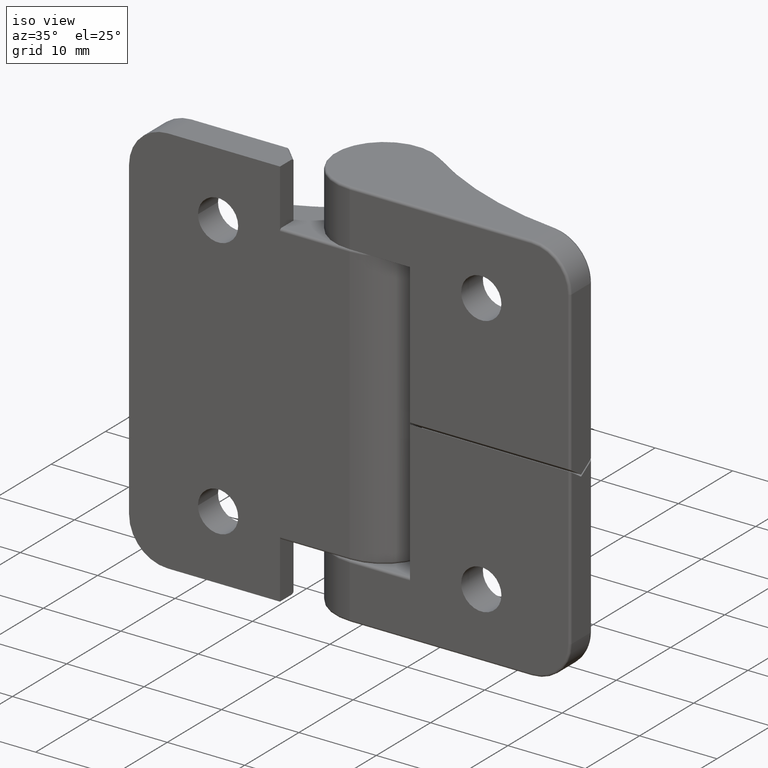
[diagram: clean part render]
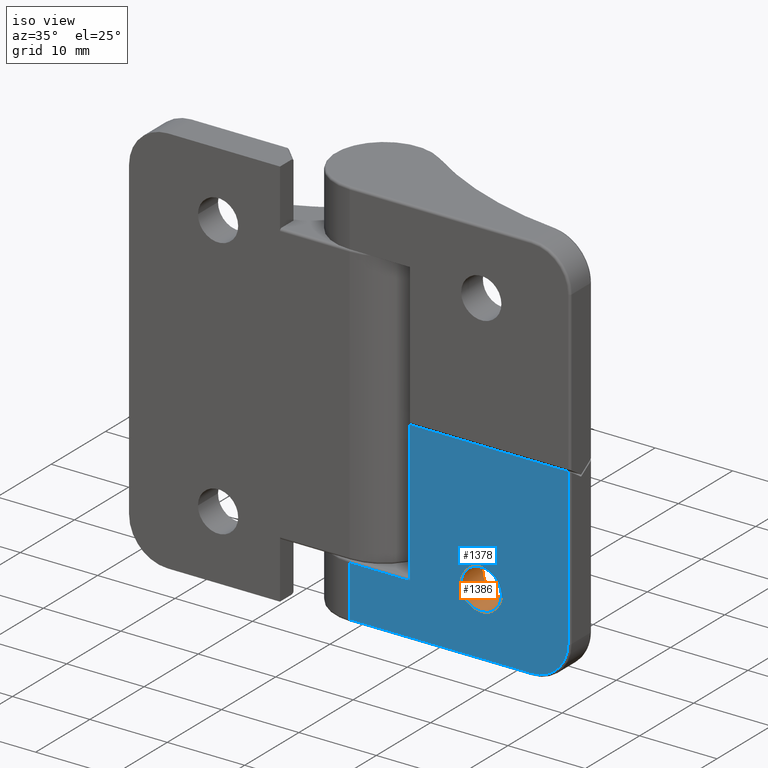
[diagram: same view with the hole feature highlighted: cylindrical wall and planar end face, labeled with their STEP entity ids]
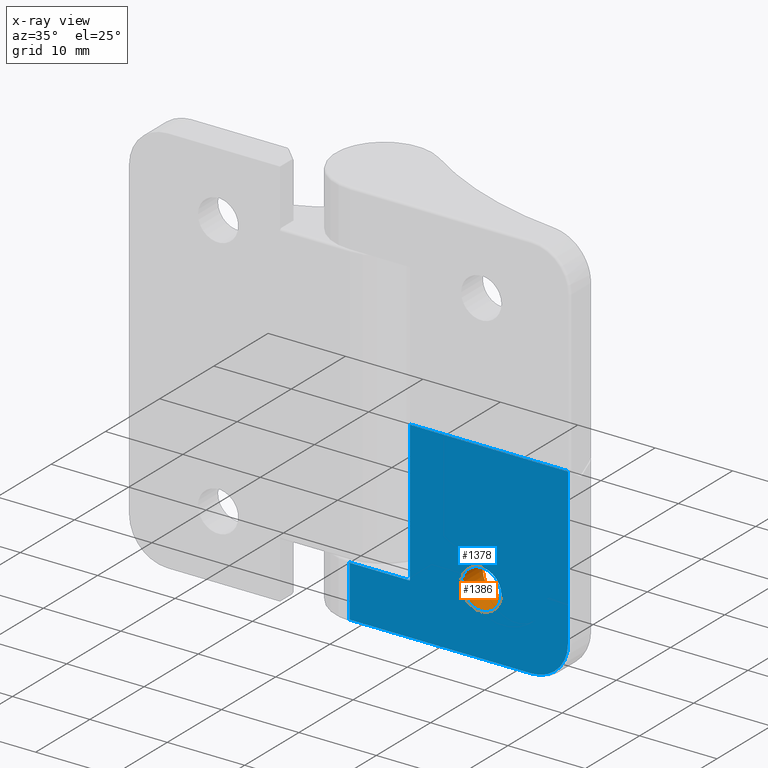
[diagram: x-ray of the same camera — body ghosted, the hole faces saturated]
A machine part, iso view. The highlighted faces form one hole feature of diameter 5.2 mm: the cylindrical wall (entity #1386, orange) and its adjacent planar end face (entity #1378, blue) — they share a circular edge in the B-rep.
The next image is the same camera in x-ray (body ghosted, the hole faces saturated) — the bore reads through the body.
Wall:
#47=FACE_BOUND('',#509,.T.);
#333=CYLINDRICAL_SURFACE('',#1561,2.6);
#412=FACE_OUTER_BOUND('',#508,.T.);
#508=EDGE_LOOP('',(#1283));
#509=EDGE_LOOP('',(#1284));
#587=CIRCLE('',#1540,2.6);
#591=CIRCLE('',#1548,2.6);
#707=VERTEX_POINT('',#2520);
#714=VERTEX_POINT('',#2559);
#888=EDGE_CURVE('',#707,#707,#587,.T.);
#899=EDGE_CURVE('',#714,#714,#591,.T.);
#1283=ORIENTED_EDGE('',*,*,#888,.F.);
#1284=ORIENTED_EDGE('',*,*,#899,.F.);
#1386=ADVANCED_FACE('',(#412,#47),#333,.F.);
#1540=AXIS2_PLACEMENT_3D('',#2521,#1940,#1941);
#1548=AXIS2_PLACEMENT_3D('',#2560,#1962,#1963);
#1561=AXIS2_PLACEMENT_3D('',#2601,#1993,#1994);
#1940=DIRECTION('center_axis',(4.67462326157961E-16,-1.,0.));
#1941=DIRECTION('ref_axis',(1.,4.67462326157961E-16,0.));
#1962=DIRECTION('center_axis',(-4.67462326157961E-16,1.,0.));
#1963=DIRECTION('ref_axis',(1.,4.67462326157961E-16,0.));
#1993=DIRECTION('center_axis',(-4.67462326157961E-16,1.,0.));
#1994=DIRECTION('ref_axis',(1.,4.67462326157961E-16,0.));
#2520=CARTESIAN_POINT('',(-19.6,-2.35,17.));
#2521=CARTESIAN_POINT('Origin',(-17.,-2.35000000000001,17.));
#2559=CARTESIAN_POINT('',(-19.6,-6.35000000000001,17.));
#2560=CARTESIAN_POINT('Origin',(-17.,-6.35000000000001,17.));
#2601=CARTESIAN_POINT('Origin',(-17.,-65.2556386959492,17.));
End face:
#46=FACE_BOUND('',#500,.T.);
#83=PLANE('',#1547);
#172=LINE('',#2423,#267);
#175=LINE('',#2438,#270);
#185=LINE('',#2551,#280);
#186=LINE('',#2555,#281);
#187=LINE('',#2557,#282);
#188=LINE('',#2558,#283);
#267=VECTOR('',#1887,20.1614627911625);
#270=VECTOR('',#1904,23.5);
#280=VECTOR('',#1954,6.65);
#281=VECTOR('',#1959,20.4);
#282=VECTOR('',#1960,18.2114627911625);
#283=VECTOR('',#1961,7.8);
#404=FACE_OUTER_BOUND('',#499,.T.);
#499=EDGE_LOOP('',(#1244,#1245,#1246,#1247,#1248,#1249,#1250));
#500=EDGE_LOOP('',(#1251));
#576=CIRCLE('',#1523,4.7);
#591=CIRCLE('',#1548,2.6);
#686=VERTEX_POINT('',#2420);
#687=VERTEX_POINT('',#2422);
#689=VERTEX_POINT('',#2428);
#691=VERTEX_POINT('',#2434);
#711=VERTEX_POINT('',#2550);
#712=VERTEX_POINT('',#2554);
#713=VERTEX_POINT('',#2556);
#714=VERTEX_POINT('',#2559);
#860=EDGE_CURVE('',#686,#687,#172,.T.);
#865=EDGE_CURVE('',#687,#689,#576,.T.);
#868=EDGE_CURVE('',#689,#691,#175,.T.);
#894=EDGE_CURVE('',#711,#691,#185,.T.);
#896=EDGE_CURVE('',#686,#712,#186,.T.);
#897=EDGE_CURVE('',#712,#713,#187,.T.);
#898=EDGE_CURVE('',#711,#713,#188,.T.);
#899=EDGE_CURVE('',#714,#714,#591,.T.);
#1244=ORIENTED_EDGE('',*,*,#868,.F.);
#1245=ORIENTED_EDGE('',*,*,#865,.F.);
#1246=ORIENTED_EDGE('',*,*,#860,.F.);
#1247=ORIENTED_EDGE('',*,*,#896,.T.);
#1248=ORIENTED_EDGE('',*,*,#897,.T.);
#1249=ORIENTED_EDGE('',*,*,#898,.F.);
#1250=ORIENTED_EDGE('',*,*,#894,.T.);
#1251=ORIENTED_EDGE('',*,*,#899,.T.);
#1378=ADVANCED_FACE('',(#404,#46),#83,.T.);
#1523=AXIS2_PLACEMENT_3D('',#2432,#1897,#1898);
#1547=AXIS2_PLACEMENT_3D('',#2553,#1957,#1958);
#1548=AXIS2_PLACEMENT_3D('',#2560,#1962,#1963);
#1887=DIRECTION('',(0.,0.,1.));
#1897=DIRECTION('center_axis',(-4.67462326157961E-16,1.,0.));
#1898=DIRECTION('ref_axis',(-0.707106781186548,-3.30545780775532E-16,0.707106781186548));
#1904=DIRECTION('',(1.,4.67462326157961E-16,0.));
#1954=DIRECTION('',(0.,0.,1.));
#1957=DIRECTION('center_axis',(4.67462326157961E-16,-1.,0.));
#1958=DIRECTION('ref_axis',(1.,8.88178419700125E-16,0.));
#1959=DIRECTION('',(1.,4.67462326157961E-16,3.03850512002673E-16));
#1960=DIRECTION('',(0.,0.,1.));
#1961=DIRECTION('',(-1.,-4.67462326157961E-16,0.));
#1962=DIRECTION('center_axis',(-4.67462326157961E-16,1.,0.));
#1963=DIRECTION('ref_axis',(1.,4.67462326157961E-16,0.));
#2420=CARTESIAN_POINT('',(-28.2,-6.35000000000001,0.238537208837539));
#2422=CARTESIAN_POINT('',(-28.2,-6.35000000000001,20.4));
#2423=CARTESIAN_POINT('',(-28.2,-6.35000000000001,0.));
#2428=CARTESIAN_POINT('',(-23.5,-6.35000000000001,25.1));
#2432=CARTESIAN_POINT('Origin',(-23.5,-6.35000000000001,20.4));
#2434=CARTESIAN_POINT('',(3.11060286983428E-15,-6.35,25.1));
#2438=CARTESIAN_POINT('',(-19.7778483025644,-6.35000000000001,25.1));
#2550=CARTESIAN_POINT('',(3.11060286983428E-15,-6.35,18.45));
#2551=CARTESIAN_POINT('',(3.11060286983428E-15,-6.35,0.));
#2553=CARTESIAN_POINT('Origin',(-28.5,-6.35000000000001,0.));
#2554=CARTESIAN_POINT('',(-7.8,-6.35000000000001,0.238537208837539));
#2555=CARTESIAN_POINT('',(-28.5,-6.35000000000001,0.238537208837539));
#2556=CARTESIAN_POINT('',(-7.8,-6.35,18.45));
#2557=CARTESIAN_POINT('',(-7.8,-6.35,-9.075));
#2558=CARTESIAN_POINT('',(-18.15,-6.35000000000001,18.45));
#2559=CARTESIAN_POINT('',(-19.6,-6.35000000000001,17.));
#2560=CARTESIAN_POINT('Origin',(-17.,-6.35000000000001,17.));